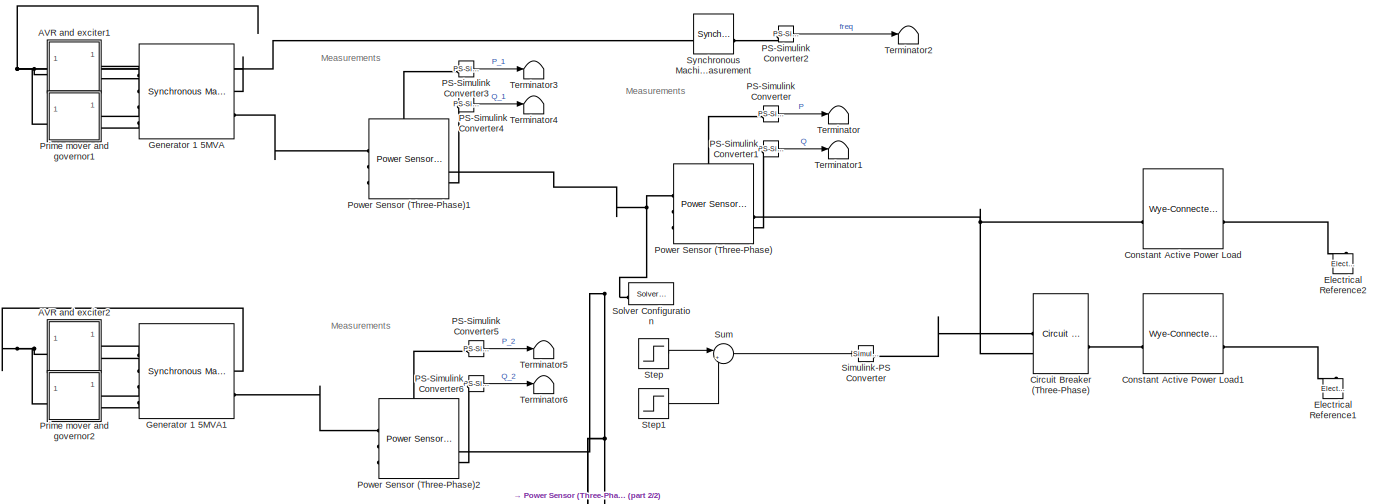
[diagram: root canvas - part 1/2, top right region]
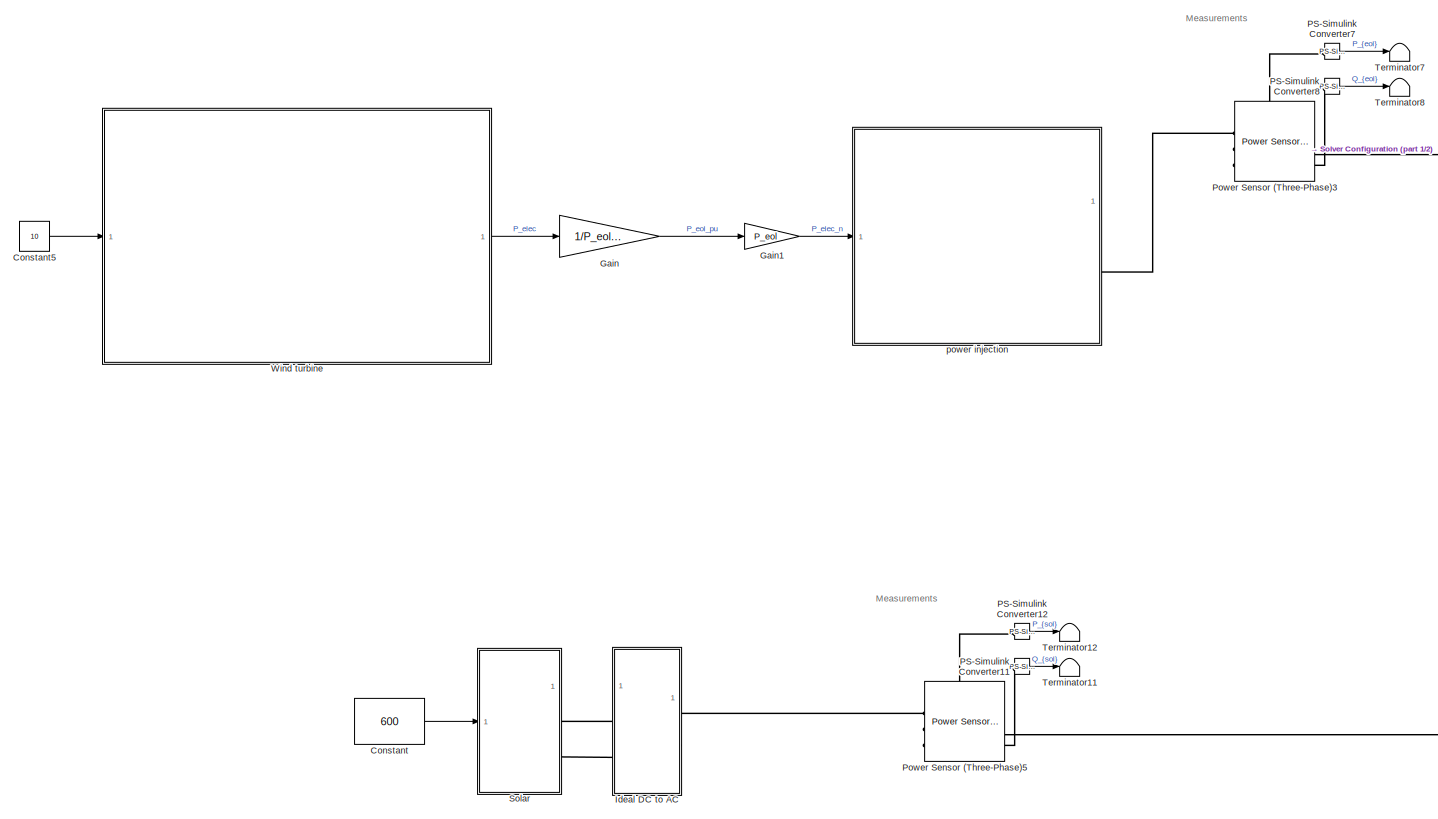
[diagram: root canvas - part 2/2, bottom left region]
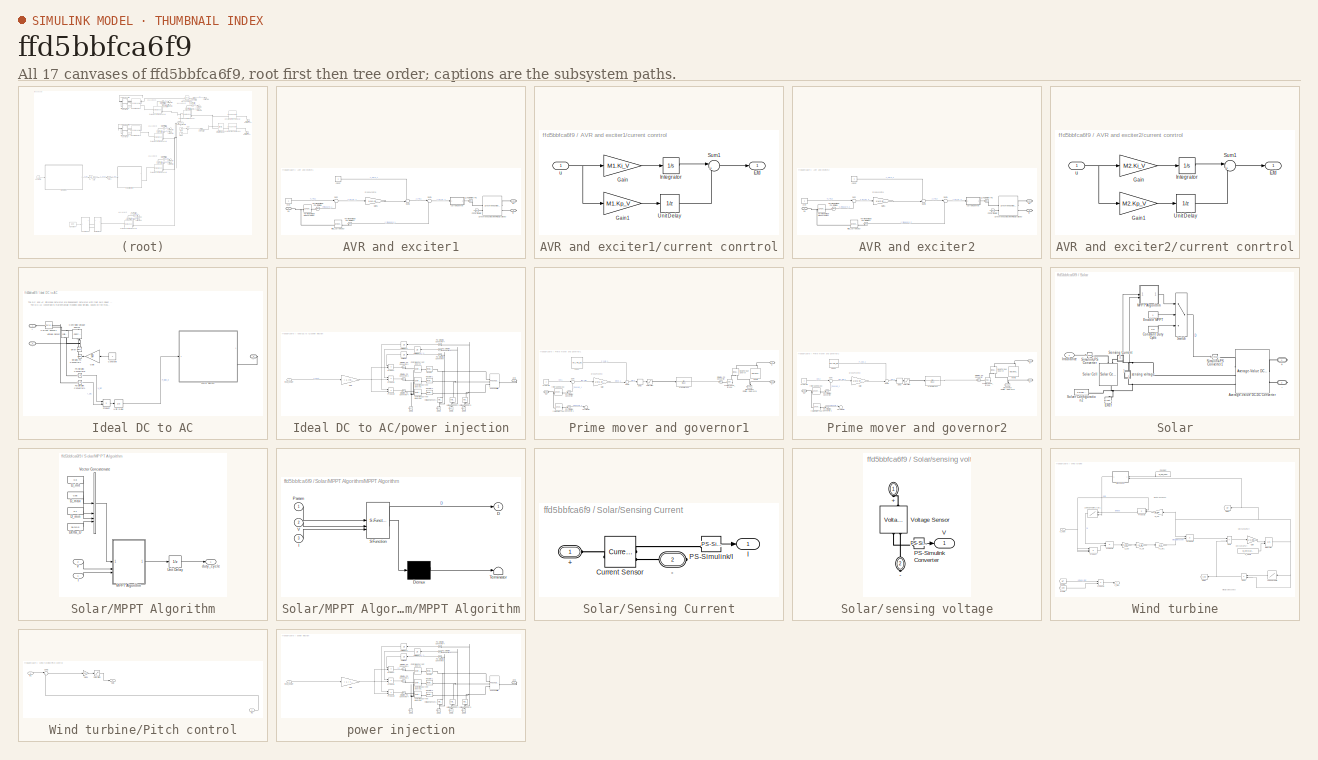
[diagram: thumbnail index - all 17 canvases of the model, root first then tree order]
MODEL slx_ffd5bbfca6f9
KIND model
CONFIG AbsTol = auto
CONFIG EnableMultiTasking = off
CONFIG FixedStep = auto
CONFIG MaxStep = auto
CONFIG MinStep = auto
CONFIG RelTol = 1e-3
CONFIG SampleTimeConstraint = Unconstrained
CONFIG SolverName = VariableStepAuto
CONFIG StartTime = 0.1
CONFIG StopTime = 40
BLOCK [SubSystem] AVR and exciter1
  NameLocation = top
BLOCK [Reference] AVR and exciter1/E_FD Simulink-PS   REF=nesl_utility/Simulink-PS
Converter
  SourceBlock = nesl_utility/Simulink-PS\nConverter
  SourceType = Simulink-PS\nConverter
BLOCK [Gain] AVR and exciter1/Gain1
  Gain = 1/M1.droopV1
BLOCK [Reference] AVR and exciter1/PS Terminator  REF=fl_lib/Physical Signals/Sinks/PS Terminator
  NameLocation = top
  SourceBlock = fl_lib/Physical Signals/Sinks/PS Terminator
  SourceType = PS Terminator
BLOCK [Sum] AVR and exciter1/Sum
  Inputs = |+-
BLOCK [Sum] AVR and exciter1/Sum1
  Inputs = |+-
BLOCK [Sum] AVR and exciter1/Sum2
  Inputs = ++|
BLOCK [Reference] AVR and exciter1/Synchronous Machine Field Circuit (pu)  REF=ee_lib/Electromechanical/Synchronous/Synchronous Machine
Field Circuit
  SourceBlock = ee_lib/Electromechanical/Synchronous/Synchronous Machine\nField Circuit
  SourceType = Synchronous Machine\nField Circuit
BLOCK [Reference] AVR and exciter1/Terminal Voltage Measurement  REF=ee_lib/Electromechanical/Synchronous/Synchronous Machine
Measurement
  SourceBlock = ee_lib/Electromechanical/Synchronous/Synchronous Machine\nMeasurement
  SourceType = Synchronous Machine\nMeasurement
BLOCK [Reference] AVR and exciter1/Terminal Voltage PS-Simulink  REF=nesl_utility/PS-Simulink
Converter
  SourceBlock = nesl_utility/PS-Simulink\nConverter
  SourceType = PS-Simulink\nConverter
BLOCK [Reference] AVR and exciter1/Terminal Voltage PS-Simulink1  REF=nesl_utility/PS-Simulink
Converter
  SourceBlock = nesl_utility/PS-Simulink\nConverter
  SourceType = PS-Simulink\nConverter
BLOCK [Constant] AVR and exciter1/Vref
  NameLocation = top
BLOCK [Constant] AVR and exciter1/const
  NameLocation = top
BLOCK [SubSystem] AVR and exciter1/current conrtrol
BLOCK [Outport] AVR and exciter1/current conrtrol/Efd
BLOCK [Gain] AVR and exciter1/current conrtrol/Gain
  Gain = M1.Ki_V
BLOCK [Gain] AVR and exciter1/current conrtrol/Gain1
  Gain = M1.Kp_V
BLOCK [Integrator] AVR and exciter1/current conrtrol/Integrator
BLOCK [Sum] AVR and exciter1/current conrtrol/Sum1
  Inputs = |++
BLOCK [UnitDelay] AVR and exciter1/current conrtrol/Unit Delay
  HasFrameUpgradeWarning = on
  InitialCondition = 1
  SampleTime = -1
BLOCK [Inport] AVR and exciter1/current conrtrol/u
BLOCK [PMIOPort] AVR and exciter1/fd+
  Port = 2
  Side = Right
BLOCK [PMIOPort] AVR and exciter1/fd-
  Port = 3
  Side = Right
BLOCK [Reference] AVR and exciter1/field_current (pu)  REF=ee_lib/Electromechanical/Synchronous/Synchronous Machine
Measurement
  SourceBlock = ee_lib/Electromechanical/Synchronous/Synchronous Machine\nMeasurement
  SourceType = Synchronous Machine\nMeasurement
BLOCK [PMIOPort] AVR and exciter1/pu
  Side = Left
BLOCK [SubSystem] AVR and exciter2
  NameLocation = top
BLOCK [Reference] AVR and exciter2/E_FD Simulink-PS   REF=nesl_utility/Simulink-PS
Converter
  SourceBlock = nesl_utility/Simulink-PS\nConverter
  SourceType = Simulink-PS\nConverter
BLOCK [Gain] AVR and exciter2/Gain1
  Gain = 1/M2.droopV1
BLOCK [Reference] AVR and exciter2/PS Terminator  REF=fl_lib/Physical Signals/Sinks/PS Terminator
  NameLocation = top
  SourceBlock = fl_lib/Physical Signals/Sinks/PS Terminator
  SourceType = PS Terminator
BLOCK [Sum] AVR and exciter2/Sum
  Inputs = |+-
BLOCK [Sum] AVR and exciter2/Sum1
  Inputs = |+-
BLOCK [Sum] AVR and exciter2/Sum2
  Inputs = ++|
BLOCK [Reference] AVR and exciter2/Synchronous Machine Field Circuit (pu)  REF=ee_lib/Electromechanical/Synchronous/Synchronous Machine
Field Circuit
  SourceBlock = ee_lib/Electromechanical/Synchronous/Synchronous Machine\nField Circuit
  SourceType = Synchronous Machine\nField Circuit
BLOCK [Reference] AVR and exciter2/Terminal Voltage Measurement  REF=ee_lib/Electromechanical/Synchronous/Synchronous Machine
Measurement
  SourceBlock = ee_lib/Electromechanical/Synchronous/Synchronous Machine\nMeasurement
  SourceType = Synchronous Machine\nMeasurement
BLOCK [Reference] AVR and exciter2/Terminal Voltage PS-Simulink  REF=nesl_utility/PS-Simulink
Converter
  SourceBlock = nesl_utility/PS-Simulink\nConverter
  SourceType = PS-Simulink\nConverter
BLOCK [Reference] AVR and exciter2/Terminal Voltage PS-Simulink1  REF=nesl_utility/PS-Simulink
Converter
  SourceBlock = nesl_utility/PS-Simulink\nConverter
  SourceType = PS-Simulink\nConverter
BLOCK [Constant] AVR and exciter2/Vref
  NameLocation = top
BLOCK [Constant] AVR and exciter2/const
  NameLocation = top
BLOCK [SubSystem] AVR and exciter2/current conrtrol
BLOCK [Outport] AVR and exciter2/current conrtrol/Efd
BLOCK [Gain] AVR and exciter2/current conrtrol/Gain
  Gain = M2.Ki_V
BLOCK [Gain] AVR and exciter2/current conrtrol/Gain1
  Gain = M2.Kp_V
BLOCK [Integrator] AVR and exciter2/current conrtrol/Integrator
BLOCK [Sum] AVR and exciter2/current conrtrol/Sum1
  Inputs = |++
BLOCK [UnitDelay] AVR and exciter2/current conrtrol/Unit Delay
  HasFrameUpgradeWarning = on
  InitialCondition = 1
  SampleTime = -1
BLOCK [Inport] AVR and exciter2/current conrtrol/u
BLOCK [PMIOPort] AVR and exciter2/fd+
  Port = 2
  Side = Right
BLOCK [PMIOPort] AVR and exciter2/fd-
  Port = 3
  Side = Right
BLOCK [Reference] AVR and exciter2/field_current (pu)  REF=ee_lib/Electromechanical/Synchronous/Synchronous Machine
Measurement
  SourceBlock = ee_lib/Electromechanical/Synchronous/Synchronous Machine\nMeasurement
  SourceType = Synchronous Machine\nMeasurement
BLOCK [PMIOPort] AVR and exciter2/pu
  Side = Left
BLOCK [Reference] Circuit Breaker (Three-Phase)  REF=ee_lib/Switches & Breakers/Circuit Breaker
(Three-Phase)
  SourceBlock = ee_lib/Switches & Breakers/Circuit Breaker\n(Three-Phase)
  SourceType = Circuit Breaker\n(Three-Phase)
BLOCK [Constant] Constant
  Value = 600
BLOCK [Reference] Constant Active Power Load  REF=ee_lib/Passive/RLC Assemblies/Wye-Connected Load
  SourceBlock = ee_lib/Passive/RLC Assemblies/Wye-Connected Load
  SourceType = Wye-Connected Load
BLOCK [Reference] Constant Active Power Load1  REF=ee_lib/Passive/RLC Assemblies/Wye-Connected Load
  SourceBlock = ee_lib/Passive/RLC Assemblies/Wye-Connected Load
  SourceType = Wye-Connected Load
BLOCK [Constant] Constant5
  Value = 10
BLOCK [Reference] Electrical Reference1  REF=fl_lib/Electrical/Electrical Elements/Electrical Reference
  NameLocation = right
  SourceBlock = fl_lib/Electrical/Electrical Elements/Electrical Reference
  SourceType = Electrical Reference
BLOCK [Reference] Electrical Reference2  REF=fl_lib/Electrical/Electrical Elements/Electrical Reference
  NameLocation = right
  SourceBlock = fl_lib/Electrical/Electrical Elements/Electrical Reference
  SourceType = Electrical Reference
BLOCK [Gain] Gain
  Gain = 1/P_eol_base
BLOCK [Gain] Gain1
  Gain = P_eol
BLOCK [Reference] Generator 1 5MVA  REF=ee_lib/Electromechanical/Synchronous/Synchronous Machine
Salient Pole
  SourceBlock = ee_lib/Electromechanical/Synchronous/Synchronous Machine\nSalient Pole
  SourceType = Synchronous Machine\nSalient Pole
BLOCK [Reference] Generator 1 5MVA1  REF=ee_lib/Electromechanical/Synchronous/Synchronous Machine
Salient Pole
  SourceBlock = ee_lib/Electromechanical/Synchronous/Synchronous Machine\nSalient Pole
  SourceType = Synchronous Machine\nSalient Pole
BLOCK [SubSystem] Ideal DC to AC
BLOCK [PMIOPort] Ideal DC to AC/+
  Side = Left
BLOCK [PMIOPort] Ideal DC to AC/-
  Port = 2
  Side = Left
BLOCK [Constant] Ideal DC to AC/Constant
  NameLocation = top
BLOCK [Reference] Ideal DC to AC/Controlled Voltage Source  REF=fl_lib/Electrical/Electrical Sources/Controlled Voltage
Source
  NameLocation = right
  SourceBlock = fl_lib/Electrical/Electrical Sources/Controlled Voltage\nSource
  SourceType = Controlled Voltage\nSource
BLOCK [Reference] Ideal DC to AC/Current Sensor1  REF=fl_lib/Electrical/Electrical Sensors/Current Sensor
  SourceBlock = fl_lib/Electrical/Electrical Sensors/Current Sensor
  SourceType = Current Sensor
BLOCK [Reference] Ideal DC to AC/ERef  REF=fl_lib/Electrical/Electrical Elements/Electrical Reference
  NameLocation = right
  SourceBlock = fl_lib/Electrical/Electrical Elements/Electrical Reference
  SourceType = Electrical Reference
BLOCK [Gain] Ideal DC to AC/Gain
  Gain = 50
BLOCK [Reference] Ideal DC to AC/PS-Simulink Converter1  REF=nesl_utility/PS-Simulink
Converter
  SourceBlock = nesl_utility/PS-Simulink\nConverter
  SourceType = PS-Simulink\nConverter
BLOCK [Reference] Ideal DC to AC/PS-Simulink Converter6  REF=nesl_utility/PS-Simulink
Converter
  SourceBlock = nesl_utility/PS-Simulink\nConverter
  SourceType = PS-Simulink\nConverter
BLOCK [Product] Ideal DC to AC/Product
BLOCK [Reference] Ideal DC to AC/Simulink-PS Converter1  REF=nesl_utility/Simulink-PS
Converter
  NameLocation = top
  SourceBlock = nesl_utility/Simulink-PS\nConverter
  SourceType = Simulink-PS\nConverter
BLOCK [UnitDelay] Ideal DC to AC/Unit Delay
  HasFrameUpgradeWarning = on
  SampleTime = -1
BLOCK [Reference] Ideal DC to AC/Voltage Sensor  REF=fl_lib/Electrical/Electrical Sensors/Voltage Sensor
  NameLocation = right
  SourceBlock = fl_lib/Electrical/Electrical Sensors/Voltage Sensor
  SourceType = Voltage Sensor
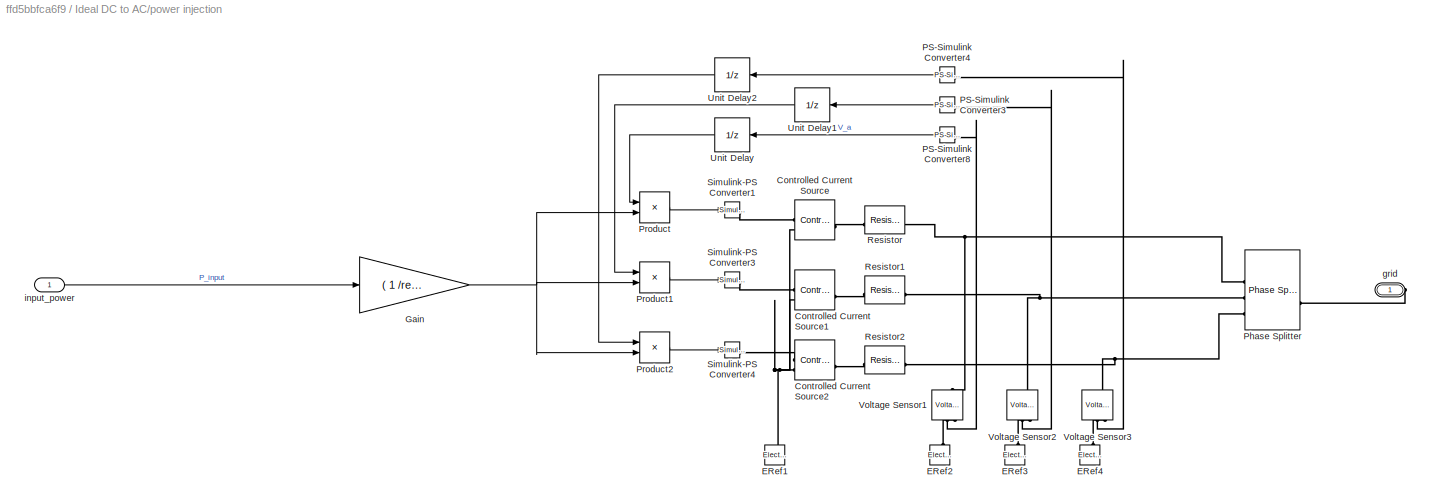
BLOCK [SubSystem] Ideal DC to AC/power injection
BLOCK [Reference] Ideal DC to AC/power injection/Controlled Current Source  REF=fl_lib/Electrical/Electrical Sources/Controlled Current
Source
  SourceBlock = fl_lib/Electrical/Electrical Sources/Controlled Current\nSource
  SourceType = Controlled Current\nSource
BLOCK [Reference] Ideal DC to AC/power injection/Controlled Current Source1  REF=fl_lib/Electrical/Electrical Sources/Controlled Current
Source
  SourceBlock = fl_lib/Electrical/Electrical Sources/Controlled Current\nSource
  SourceType = Controlled Current\nSource
BLOCK [Reference] Ideal DC to AC/power injection/Controlled Current Source2  REF=fl_lib/Electrical/Electrical Sources/Controlled Current
Source
  SourceBlock = fl_lib/Electrical/Electrical Sources/Controlled Current\nSource
  SourceType = Controlled Current\nSource
BLOCK [Reference] Ideal DC to AC/power injection/ERef1  REF=fl_lib/Electrical/Electrical Elements/Electrical Reference
  NameLocation = right
  SourceBlock = fl_lib/Electrical/Electrical Elements/Electrical Reference
  SourceType = Electrical Reference
BLOCK [Reference] Ideal DC to AC/power injection/ERef2  REF=fl_lib/Electrical/Electrical Elements/Electrical Reference
  NameLocation = right
  SourceBlock = fl_lib/Electrical/Electrical Elements/Electrical Reference
  SourceType = Electrical Reference
BLOCK [Reference] Ideal DC to AC/power injection/ERef3  REF=fl_lib/Electrical/Electrical Elements/Electrical Reference
  NameLocation = right
  SourceBlock = fl_lib/Electrical/Electrical Elements/Electrical Reference
  SourceType = Electrical Reference
BLOCK [Reference] Ideal DC to AC/power injection/ERef4  REF=fl_lib/Electrical/Electrical Elements/Electrical Reference
  NameLocation = right
  SourceBlock = fl_lib/Electrical/Electrical Elements/Electrical Reference
  SourceType = Electrical Reference
BLOCK [Gain] Ideal DC to AC/power injection/Gain
  Gain = ( 1 /ref_volt ) ^ 2
BLOCK [Reference] Ideal DC to AC/power injection/PS-Simulink Converter3  REF=nesl_utility/PS-Simulink
Converter
  NameLocation = top
  SourceBlock = nesl_utility/PS-Simulink\nConverter
  SourceType = PS-Simulink\nConverter
BLOCK [Reference] Ideal DC to AC/power injection/PS-Simulink Converter4  REF=nesl_utility/PS-Simulink
Converter
  NameLocation = top
  SourceBlock = nesl_utility/PS-Simulink\nConverter
  SourceType = PS-Simulink\nConverter
BLOCK [Reference] Ideal DC to AC/power injection/PS-Simulink Converter8  REF=nesl_utility/PS-Simulink
Converter
  NameLocation = top
  SourceBlock = nesl_utility/PS-Simulink\nConverter
  SourceType = PS-Simulink\nConverter
BLOCK [Reference] Ideal DC to AC/power injection/Phase Splitter  REF=ee_lib/Connectors &
References/Phase Splitter
  SourceBlock = ee_lib/Connectors &\nReferences/Phase Splitter
  SourceType = Phase Splitter
BLOCK [Product] Ideal DC to AC/power injection/Product
BLOCK [Product] Ideal DC to AC/power injection/Product1
BLOCK [Product] Ideal DC to AC/power injection/Product2
BLOCK [Reference] Ideal DC to AC/power injection/Resistor  REF=fl_lib/Electrical/Electrical Elements/Resistor
  SourceBlock = fl_lib/Electrical/Electrical Elements/Resistor
  SourceType = Resistor
BLOCK [Reference] Ideal DC to AC/power injection/Resistor1  REF=fl_lib/Electrical/Electrical Elements/Resistor
  SourceBlock = fl_lib/Electrical/Electrical Elements/Resistor
  SourceType = Resistor
BLOCK [Reference] Ideal DC to AC/power injection/Resistor2  REF=fl_lib/Electrical/Electrical Elements/Resistor
  SourceBlock = fl_lib/Electrical/Electrical Elements/Resistor
  SourceType = Resistor
BLOCK [Reference] Ideal DC to AC/power injection/Simulink-PS Converter1  REF=nesl_utility/Simulink-PS
Converter
  SourceBlock = nesl_utility/Simulink-PS\nConverter
  SourceType = Simulink-PS\nConverter
BLOCK [Reference] Ideal DC to AC/power injection/Simulink-PS Converter3  REF=nesl_utility/Simulink-PS
Converter
  SourceBlock = nesl_utility/Simulink-PS\nConverter
  SourceType = Simulink-PS\nConverter
BLOCK [Reference] Ideal DC to AC/power injection/Simulink-PS Converter4  REF=nesl_utility/Simulink-PS
Converter
  SourceBlock = nesl_utility/Simulink-PS\nConverter
  SourceType = Simulink-PS\nConverter
BLOCK [UnitDelay] Ideal DC to AC/power injection/Unit Delay
  HasFrameUpgradeWarning = on
  SampleTime = -1
BLOCK [UnitDelay] Ideal DC to AC/power injection/Unit Delay1
  HasFrameUpgradeWarning = on
  SampleTime = -1
BLOCK [UnitDelay] Ideal DC to AC/power injection/Unit Delay2
  HasFrameUpgradeWarning = on
  SampleTime = -1
BLOCK [Reference] Ideal DC to AC/power injection/Voltage Sensor1  REF=fl_lib/Electrical/Electrical Sensors/Voltage Sensor
  NameLocation = right
  SourceBlock = fl_lib/Electrical/Electrical Sensors/Voltage Sensor
  SourceType = Voltage Sensor
BLOCK [Reference] Ideal DC to AC/power injection/Voltage Sensor2  REF=fl_lib/Electrical/Electrical Sensors/Voltage Sensor
  NameLocation = right
  SourceBlock = fl_lib/Electrical/Electrical Sensors/Voltage Sensor
  SourceType = Voltage Sensor
BLOCK [Reference] Ideal DC to AC/power injection/Voltage Sensor3  REF=fl_lib/Electrical/Electrical Sensors/Voltage Sensor
  NameLocation = right
  SourceBlock = fl_lib/Electrical/Electrical Sensors/Voltage Sensor
  SourceType = Voltage Sensor
BLOCK [PMIOPort] Ideal DC to AC/power injection/grid
  Side = Right
BLOCK [Inport] Ideal DC to AC/power injection/input_power
BLOCK [PMIOPort] Ideal DC to AC/~
  Port = 3
  Side = Right
BLOCK [Reference] PS-Simulink Converter  REF=nesl_utility/PS-Simulink
Converter
  SourceBlock = nesl_utility/PS-Simulink\nConverter
  SourceType = PS-Simulink\nConverter
BLOCK [Reference] PS-Simulink Converter1  REF=nesl_utility/PS-Simulink
Converter
  SourceBlock = nesl_utility/PS-Simulink\nConverter
  SourceType = PS-Simulink\nConverter
BLOCK [Reference] PS-Simulink Converter11  REF=nesl_utility/PS-Simulink
Converter
  SourceBlock = nesl_utility/PS-Simulink\nConverter
  SourceType = PS-Simulink\nConverter
BLOCK [Reference] PS-Simulink Converter12  REF=nesl_utility/PS-Simulink
Converter
  SourceBlock = nesl_utility/PS-Simulink\nConverter
  SourceType = PS-Simulink\nConverter
BLOCK [Reference] PS-Simulink Converter2  REF=nesl_utility/PS-Simulink
Converter
  SourceBlock = nesl_utility/PS-Simulink\nConverter
  SourceType = PS-Simulink\nConverter
BLOCK [Reference] PS-Simulink Converter3  REF=nesl_utility/PS-Simulink
Converter
  SourceBlock = nesl_utility/PS-Simulink\nConverter
  SourceType = PS-Simulink\nConverter
BLOCK [Reference] PS-Simulink Converter4  REF=nesl_utility/PS-Simulink
Converter
  SourceBlock = nesl_utility/PS-Simulink\nConverter
  SourceType = PS-Simulink\nConverter
BLOCK [Reference] PS-Simulink Converter5  REF=nesl_utility/PS-Simulink
Converter
  SourceBlock = nesl_utility/PS-Simulink\nConverter
  SourceType = PS-Simulink\nConverter
BLOCK [Reference] PS-Simulink Converter6  REF=nesl_utility/PS-Simulink
Converter
  SourceBlock = nesl_utility/PS-Simulink\nConverter
  SourceType = PS-Simulink\nConverter
BLOCK [Reference] PS-Simulink Converter7  REF=nesl_utility/PS-Simulink
Converter
  SourceBlock = nesl_utility/PS-Simulink\nConverter
  SourceType = PS-Simulink\nConverter
BLOCK [Reference] PS-Simulink Converter8  REF=nesl_utility/PS-Simulink
Converter
  SourceBlock = nesl_utility/PS-Simulink\nConverter
  SourceType = PS-Simulink\nConverter
BLOCK [Reference] Power Sensor (Three-Phase)  REF=ee_lib/Sensors &
Transducers/Power Sensor
(Three-Phase)
  SourceBlock = ee_lib/Sensors &\nTransducers/Power Sensor\n(Three-Phase)
  SourceType = Power Sensor\n(Three-Phase)
BLOCK [Reference] Power Sensor (Three-Phase)1  REF=ee_lib/Sensors &
Transducers/Power Sensor
(Three-Phase)
  SourceBlock = ee_lib/Sensors &\nTransducers/Power Sensor\n(Three-Phase)
  SourceType = Power Sensor\n(Three-Phase)
BLOCK [Reference] Power Sensor (Three-Phase)2  REF=ee_lib/Sensors &
Transducers/Power Sensor
(Three-Phase)
  SourceBlock = ee_lib/Sensors &\nTransducers/Power Sensor\n(Three-Phase)
  SourceType = Power Sensor\n(Three-Phase)
BLOCK [Reference] Power Sensor (Three-Phase)3  REF=ee_lib/Sensors &
Transducers/Power Sensor
(Three-Phase)
  SourceBlock = ee_lib/Sensors &\nTransducers/Power Sensor\n(Three-Phase)
  SourceType = Power Sensor\n(Three-Phase)
BLOCK [Reference] Power Sensor (Three-Phase)5  REF=ee_lib/Sensors &
Transducers/Power Sensor
(Three-Phase)
  SourceBlock = ee_lib/Sensors &\nTransducers/Power Sensor\n(Three-Phase)
  SourceType = Power Sensor\n(Three-Phase)
BLOCK [SubSystem] Prime mover and governor1
BLOCK [PMIOPort] Prime mover and governor1/C
  Port = 2
  Side = Right
BLOCK [Delay] Prime mover and governor1/Delay
  DelayLength = 1
  InputPortMap = u0
BLOCK [Constant] Prime mover and governor1/Freq ref1
  NameLocation = top
BLOCK [Gain] Prime mover and governor1/Gain
  Gain = 1/M1.droopP1
BLOCK [Reference] Prime mover and governor1/Ideal Torque Source  REF=fl_lib/Mechanical/Mechanical Sources/Ideal Torque Source
  NameLocation = left
  SourceBlock = fl_lib/Mechanical/Mechanical Sources/Ideal Torque Source
  SourceType = Ideal Torque Source
BLOCK [Reference] Prime mover and governor1/Inertia  REF=ee_lib/Electromechanical/Mechanical/Machine
Inertia
  NameLocation = right
  SourceBlock = ee_lib/Electromechanical/Mechanical/Machine\nInertia
  SourceType = Machine\nInertia
BLOCK [Reference] Prime mover and governor1/Mechanical Rotational Reference  REF=fl_lib/Mechanical/Rotational Elements/Mechanical
Rotational Reference
  NameLocation = right
  SourceBlock = fl_lib/Mechanical/Rotational Elements/Mechanical\nRotational Reference
  SourceType = Mechanical\nRotational Reference
BLOCK [Reference] Prime mover and governor1/PS-Simulink Converter  REF=nesl_utility/PS-Simulink
Converter
  SourceBlock = nesl_utility/PS-Simulink\nConverter
  SourceType = PS-Simulink\nConverter
BLOCK [Reference] Prime mover and governor1/PS-Simulink Converter1  REF=nesl_utility/PS-Simulink
Converter
  SourceBlock = nesl_utility/PS-Simulink\nConverter
  SourceType = PS-Simulink\nConverter
BLOCK [PMIOPort] Prime mover and governor1/R
  Side = Right
BLOCK [Saturate] Prime mover and governor1/Saturation
  LowerLimit = 0
  UpperLimit = 1
BLOCK [Reference] Prime mover and governor1/Simulink-PS Converter  REF=nesl_utility/Simulink-PS
Converter
  NameLocation = top
  SourceBlock = nesl_utility/Simulink-PS\nConverter
  SourceType = Simulink-PS\nConverter
BLOCK [Sum] Prime mover and governor1/Sum
  Inputs = |+-
  NameLocation = top
BLOCK [Sum] Prime mover and governor1/Sum3
  Inputs = ++|
BLOCK [Terminator] Prime mover and governor1/Terminator
BLOCK [TransferFcn] Prime mover and governor1/Transfer Fcn
  Denominator = [0.5 1]
BLOCK [Constant] Prime mover and governor1/const
  NameLocation = top
  Value = M1.P0_pu
BLOCK [PMIOPort] Prime mover and governor1/pu
  Port = 3
  Side = Left
BLOCK [Reference] Prime mover and governor1/real power (pu)  REF=ee_lib/Electromechanical/Synchronous/Synchronous Machine
Measurement
  SourceBlock = ee_lib/Electromechanical/Synchronous/Synchronous Machine\nMeasurement
  SourceType = Synchronous Machine\nMeasurement
BLOCK [Reference] Prime mover and governor1/rotor speed (pu)  REF=ee_lib/Electromechanical/Synchronous/Synchronous Machine
Measurement
  SourceBlock = ee_lib/Electromechanical/Synchronous/Synchronous Machine\nMeasurement
  SourceType = Synchronous Machine\nMeasurement
BLOCK [Reference] Prime mover and governor1/scale by base_torque  REF=fl_lib/Physical Signals/Functions/PS Gain
  SourceBlock = fl_lib/Physical Signals/Functions/PS Gain
  SourceType = PS Gain
BLOCK [SubSystem] Prime mover and governor2
BLOCK [PMIOPort] Prime mover and governor2/C
  Port = 2
  Side = Right
BLOCK [Delay] Prime mover and governor2/Delay
  DelayLength = 1
  InputPortMap = u0
BLOCK [Constant] Prime mover and governor2/Freq ref1
  NameLocation = top
BLOCK [Gain] Prime mover and governor2/Gain
  Gain = 1/M2.droopP1
BLOCK [Reference] Prime mover and governor2/Ideal Torque Source  REF=fl_lib/Mechanical/Mechanical Sources/Ideal Torque Source
  NameLocation = left
  SourceBlock = fl_lib/Mechanical/Mechanical Sources/Ideal Torque Source
  SourceType = Ideal Torque Source
BLOCK [Reference] Prime mover and governor2/Inertia  REF=ee_lib/Electromechanical/Mechanical/Machine
Inertia
  NameLocation = right
  SourceBlock = ee_lib/Electromechanical/Mechanical/Machine\nInertia
  SourceType = Machine\nInertia
BLOCK [Reference] Prime mover and governor2/Mechanical Rotational Reference  REF=fl_lib/Mechanical/Rotational Elements/Mechanical
Rotational Reference
  NameLocation = right
  SourceBlock = fl_lib/Mechanical/Rotational Elements/Mechanical\nRotational Reference
  SourceType = Mechanical\nRotational Reference
BLOCK [Reference] Prime mover and governor2/PS-Simulink Converter  REF=nesl_utility/PS-Simulink
Converter
  SourceBlock = nesl_utility/PS-Simulink\nConverter
  SourceType = PS-Simulink\nConverter
BLOCK [Reference] Prime mover and governor2/PS-Simulink Converter1  REF=nesl_utility/PS-Simulink
Converter
  SourceBlock = nesl_utility/PS-Simulink\nConverter
  SourceType = PS-Simulink\nConverter
BLOCK [PMIOPort] Prime mover and governor2/R
  Side = Right
BLOCK [Saturate] Prime mover and governor2/Saturation
  LowerLimit = 0
  UpperLimit = 1
BLOCK [Reference] Prime mover and governor2/Simulink-PS Converter  REF=nesl_utility/Simulink-PS
Converter
  NameLocation = top
  SourceBlock = nesl_utility/Simulink-PS\nConverter
  SourceType = Simulink-PS\nConverter
BLOCK [Sum] Prime mover and governor2/Sum
  Inputs = |+-
  NameLocation = top
BLOCK [Sum] Prime mover and governor2/Sum3
  Inputs = ++|
BLOCK [Terminator] Prime mover and governor2/Terminator
BLOCK [TransferFcn] Prime mover and governor2/Transfer Fcn
  Denominator = [0.5 1]
BLOCK [Constant] Prime mover and governor2/const
  NameLocation = top
  Value = M2.P0_pu
BLOCK [PMIOPort] Prime mover and governor2/pu
  Port = 3
  Side = Left
BLOCK [Reference] Prime mover and governor2/real power (pu)  REF=ee_lib/Electromechanical/Synchronous/Synchronous Machine
Measurement
  SourceBlock = ee_lib/Electromechanical/Synchronous/Synchronous Machine\nMeasurement
  SourceType = Synchronous Machine\nMeasurement
BLOCK [Reference] Prime mover and governor2/rotor speed (pu)  REF=ee_lib/Electromechanical/Synchronous/Synchronous Machine
Measurement
  SourceBlock = ee_lib/Electromechanical/Synchronous/Synchronous Machine\nMeasurement
  SourceType = Synchronous Machine\nMeasurement
BLOCK [Reference] Prime mover and governor2/scale by base_torque  REF=fl_lib/Physical Signals/Functions/PS Gain
  SourceBlock = fl_lib/Physical Signals/Functions/PS Gain
  SourceType = PS Gain
BLOCK [Reference] Simulink-PS Converter  REF=nesl_utility/Simulink-PS
Converter
  SourceBlock = nesl_utility/Simulink-PS\nConverter
  SourceType = Simulink-PS\nConverter
BLOCK [SubSystem] Solar
BLOCK [PMIOPort] Solar/+
  Side = Right
BLOCK [PMIOPort] Solar/-
  Port = 2
  Side = Right
BLOCK [Reference] Solar/Average-Value DC-DC Converter  REF=ee_lib/Semiconductors &
Converters/Converters/Average-Value DC-DC
Converter
  SourceBlock = ee_lib/Semiconductors &\nConverters/Converters/Average-Value DC-DC\nConverter
  SourceType = Average-Value DC-DC\nConverter
BLOCK [Constant] Solar/Constant Duty Cycle
  Value = 0.8
BLOCK [Reference] Solar/ERef  REF=fl_lib/Electrical/Electrical Elements/Electrical Reference
  NameLocation = right
  SourceBlock = fl_lib/Electrical/Electrical Elements/Electrical Reference
  SourceType = Electrical Reference
BLOCK [Constant] Solar/Enable MPPT
BLOCK [Inport] Solar/Irradiance
BLOCK [SubSystem] Solar/MPPT Algorithm
BLOCK [Constant] Solar/MPPT Algorithm/D_init
  Value = 0.8
BLOCK [Constant] Solar/MPPT Algorithm/D_max
  Value = 0.85
BLOCK [Constant] Solar/MPPT Algorithm/D_min
  Value = 0.1
BLOCK [Constant] Solar/MPPT Algorithm/Delta_D
  Value = 3e-3*0.5
BLOCK [Inport] Solar/MPPT Algorithm/I
BLOCK [SubSystem] Solar/MPPT Algorithm/MPPT Algorithm
  ErrorFcn = Stateflow.Translate.translate
  PermitHierarchicalResolution = ExplicitOnly
  SFBlockType = MATLAB Function
  SystemSampleTime = Ts
  TreatAsGroupedWhenPropagatingVariantConditions = off
BLOCK [Demux] Solar/MPPT Algorithm/MPPT Algorithm/ Demux 
  Outputs = 1
BLOCK [S-Function] Solar/MPPT Algorithm/MPPT Algorithm/ SFunction 
  EnableBusSupport = on
  FunctionName = sf_sfun
  PortCounts = [3 2]
  SFcnIsStateOwnerBlock = off
  SFunctionDeploymentMode = off
  Tag = Stateflow S-Function 1
BLOCK [Terminator] Solar/MPPT Algorithm/MPPT Algorithm/ Terminator 
BLOCK [Outport] Solar/MPPT Algorithm/MPPT Algorithm/D
  VectorParamsAs1DForOutWhenUnconnected = off
BLOCK [Inport] Solar/MPPT Algorithm/MPPT Algorithm/I
  Port = 3
BLOCK [Inport] Solar/MPPT Algorithm/MPPT Algorithm/Param
BLOCK [Inport] Solar/MPPT Algorithm/MPPT Algorithm/V
  Port = 2
BLOCK [UnitDelay] Solar/MPPT Algorithm/Unit Delay
  HasFrameUpgradeWarning = on
  InitialCondition = 0.85
  SampleTime = -1
BLOCK [Inport] Solar/MPPT Algorithm/V
  Port = 2
BLOCK [Concatenate] Solar/MPPT Algorithm/Vector Concatenate
  NumInputs = 4
BLOCK [Outport] Solar/MPPT Algorithm/duty_cycle
BLOCK [SubSystem] Solar/Sensing Current
  PortSchema = {"entries":[{"content":{"sides":[{"content":{"connectorIds":["LConn1"]},"type":"ConnectorPlacement.EquallySpacedRectSide","uuid":"08eaf192-3836-4d70-9f6a-c3aee0977ea6"},{"content":{"connectorIds":["RConn1"],"side":"RIGHT"},"type":"ConnectorPlacement.EquallySpacedRectSide","uuid":"69615d36-c1bf-4d31-b3e4-77c73286e7c7"},{"content":{"connectorIds":["Out1"],"side":"TOP"},"type":"ConnectorPlacement.Equ...<+251ch>
BLOCK [PMIOPort] Solar/Sensing Current/+
  Side = Left
BLOCK [PMIOPort] Solar/Sensing Current/-
  Port = 2
  Side = Right
BLOCK [Reference] Solar/Sensing Current/Current Sensor  REF=fl_lib/Electrical/Electrical Sensors/Current Sensor
  SourceBlock = fl_lib/Electrical/Electrical Sensors/Current Sensor
  SourceType = Current Sensor
BLOCK [Outport] Solar/Sensing Current/I
BLOCK [Reference] Solar/Sensing Current/PS-Simulink//I  REF=nesl_utility/PS-Simulink
Converter
  SourceBlock = nesl_utility/PS-Simulink\nConverter
  SourceType = PS-Simulink\nConverter
BLOCK [Reference] Solar/Simulink-PS Converter  REF=nesl_utility/Simulink-PS
Converter
  SourceBlock = nesl_utility/Simulink-PS\nConverter
  SourceType = Simulink-PS\nConverter
BLOCK [Reference] Solar/Simulink-PS Converter1  REF=nesl_utility/Simulink-PS
Converter
  SourceBlock = nesl_utility/Simulink-PS\nConverter
  SourceType = Simulink-PS\nConverter
BLOCK [Reference] Solar/Solar Cell  REF=ee_lib/Sources/Solar Cell
  NameLocation = left
  SourceBlock = ee_lib/Sources/Solar Cell
  SourceType = Solar Cell
BLOCK [Reference] Solar/Solver Configuration2  REF=nesl_utility/Solver
Configuration
  SourceBlock = nesl_utility/Solver\nConfiguration
  SourceType = Solver\nConfiguration
BLOCK [Switch] Solar/Switch
  Criteria = u2 > Threshold
  InputSameDT = off
  SaturateOnIntegerOverflow = off
BLOCK [SubSystem] Solar/sensing voltage
  NameLocation = left
  PortSchema = {"entries":[{"content":{"sides":[{"content":{"connectorIds":["LConn1"]},"type":"ConnectorPlacement.EquallySpacedRectSide","uuid":"08eaf192-3836-4d70-9f6a-c3aee0977ea6"},{"content":{"connectorIds":["RConn1"],"side":"RIGHT"},"type":"ConnectorPlacement.EquallySpacedRectSide","uuid":"69615d36-c1bf-4d31-b3e4-77c73286e7c7"},{"content":{"connectorIds":[],"side":"TOP"},"type":"ConnectorPlacement.EquallySp...<+395ch>
BLOCK [PMIOPort] Solar/sensing voltage/+
  NameLocation = left
  Side = Left
BLOCK [PMIOPort] Solar/sensing voltage/-
  NameLocation = left
  Port = 2
  Side = Right
BLOCK [Reference] Solar/sensing voltage/PS-Simulink Converter  REF=nesl_utility/PS-Simulink
Converter
  SourceBlock = nesl_utility/PS-Simulink\nConverter
  SourceType = PS-Simulink\nConverter
BLOCK [Outport] Solar/sensing voltage/V
BLOCK [Reference] Solar/sensing voltage/Voltage Sensor  REF=fl_lib/Electrical/Electrical Sensors/Voltage Sensor
  NameLocation = right
  SourceBlock = fl_lib/Electrical/Electrical Sensors/Voltage Sensor
  SourceType = Voltage Sensor
BLOCK [Reference] Solver Configuration  REF=nesl_utility/Solver
Configuration
  SourceBlock = nesl_utility/Solver\nConfiguration
  SourceType = Solver\nConfiguration
BLOCK [Step] Step
  After = 0
  Before = 1
  SampleTime = 0
  Time = close_time
BLOCK [Step] Step1
  SampleTime = 0
  Time = open_time
BLOCK [Sum] Sum
  Inputs = |++
BLOCK [Reference] Synchronous Machine Measurement  REF=ee_lib/Electromechanical/Synchronous/Synchronous Machine
Measurement
  SourceBlock = ee_lib/Electromechanical/Synchronous/Synchronous Machine\nMeasurement
  SourceType = Synchronous Machine\nMeasurement
BLOCK [Terminator] Terminator
BLOCK [Terminator] Terminator1
BLOCK [Terminator] Terminator11
BLOCK [Terminator] Terminator12
BLOCK [Terminator] Terminator2
BLOCK [Terminator] Terminator3
BLOCK [Terminator] Terminator4
BLOCK [Terminator] Terminator5
BLOCK [Terminator] Terminator6
BLOCK [Terminator] Terminator7
BLOCK [Terminator] Terminator8
BLOCK [SubSystem] Wind turbine
BLOCK [Constant] Wind turbine/Constant
  Value = w_eol_nom
BLOCK [Product] Wind turbine/Divide
  InputSameDT = on
  Inputs = */
  OutDataTypeStr = Inherit: Same as first input
  RndMeth = Zero
BLOCK [From] Wind turbine/From1
  CloseFcn = tagdialog Close
  GotoTag = wT
BLOCK [From] Wind turbine/From2
  CloseFcn = tagdialog Close
  GotoTag = T_em
BLOCK [Gain] Wind turbine/Gain
  Gain = 1/J_eol
  OutDataTypeStr = Inherit: Same as input
  ParamDataTypeStr = Inherit: Same as input
  SaturateOnIntegerOverflow = on
BLOCK [Goto] Wind turbine/Goto1
  GotoTag = wT
BLOCK [Goto] Wind turbine/Goto2
  GotoTag = T_em
BLOCK [Integrator] Wind turbine/Integrator
  InitialConditionSource = external
BLOCK [Lookup] Wind turbine/Lookup Table
  InputValues = omega_tab
  Table = P_opt_tab2
BLOCK [Lookup2D] Wind turbine/Lookup Table (2-D)1
  ColumnIndex = beta_ref
  RowIndex = lambda_ref
  Table = Cp_ref
BLOCK [Outport] Wind turbine/P_elec
BLOCK [SubSystem] Wind turbine/Pitch control
BLOCK [Gain] Wind turbine/Pitch control/Gain1
  Gain = -200
BLOCK [Inport] Wind turbine/Pitch control/In1
BLOCK [Inport] Wind turbine/Pitch control/In2
  Port = 2
BLOCK [Outport] Wind turbine/Pitch control/Out1
BLOCK [Saturate] Wind turbine/Pitch control/Saturation
  LowerLimit = 0
  UpperLimit = inf
BLOCK [Sum] Wind turbine/Pitch control/Sum1
  Inputs = |+-
BLOCK [Product] Wind turbine/Product
  InputSameDT = on
  Inputs = 3
  OutDataTypeStr = Inherit: Same as first input
  RndMeth = Zero
  SaturateOnIntegerOverflow = on
BLOCK [Product] Wind turbine/Product1
  InputSameDT = on
  Inputs = /*
  OutDataTypeStr = Inherit: Same as first input
  RndMeth = Zero
  SaturateOnIntegerOverflow = on
BLOCK [Product] Wind turbine/Product2
  InputSameDT = on
  OutDataTypeStr = Inherit: Same as first input
  RndMeth = Zero
  SaturateOnIntegerOverflow = on
BLOCK [Product] Wind turbine/Product3
  InputSameDT = on
  Inputs = /*
  OutDataTypeStr = Inherit: Same as first input
  RndMeth = Zero
  SaturateOnIntegerOverflow = on
BLOCK [Product] Wind turbine/Product4
BLOCK [Gain] Wind turbine/R_pal
  Gain = R_pal
  OutDataTypeStr = Inherit: Same as input
  ParamDataTypeStr = Inherit: Same as input
  SaturateOnIntegerOverflow = on
BLOCK [Gain] Wind turbine/S_pal
  Gain = S_pal
  OutDataTypeStr = Inherit: Same as input
  ParamDataTypeStr = Inherit: Same as input
  SaturateOnIntegerOverflow = on
BLOCK [Sum] Wind turbine/Sum
  IconShape = rectangular
  InputSameDT = on
  Inputs = +-
  OutDataTypeStr = Inherit: Same as first input
  SaturateOnIntegerOverflow = on
BLOCK [Gain] Wind turbine/ro_air
  Gain = ro_air
  OutDataTypeStr = Inherit: Same as input
  ParamDataTypeStr = Inherit: Same as input
  SaturateOnIntegerOverflow = on
BLOCK [Gain] Wind turbine/ro_air1
  Gain = 1/2
  OutDataTypeStr = Inherit: Same as input
  ParamDataTypeStr = Inherit: Same as input
  SaturateOnIntegerOverflow = on
BLOCK [Inport] Wind turbine/v_vent
BLOCK [Constant] Wind turbine/v_vent2
  Value = w_zero + 1e-6
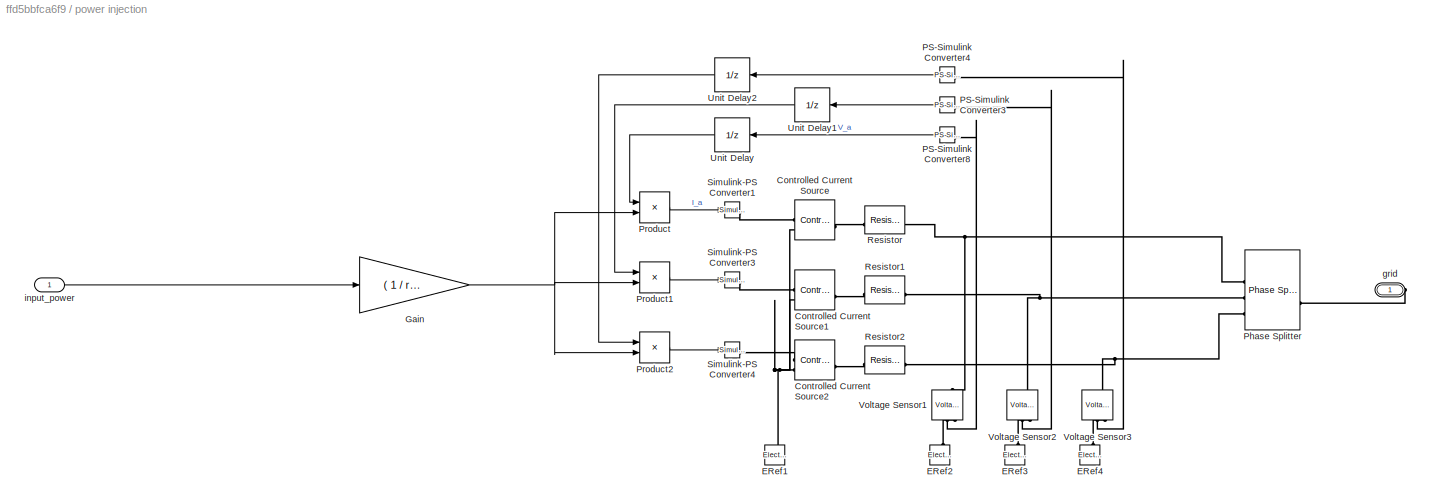
BLOCK [SubSystem] power injection
BLOCK [Reference] power injection/Controlled Current Source  REF=fl_lib/Electrical/Electrical Sources/Controlled Current
Source
  SourceBlock = fl_lib/Electrical/Electrical Sources/Controlled Current\nSource
  SourceType = Controlled Current\nSource
BLOCK [Reference] power injection/Controlled Current Source1  REF=fl_lib/Electrical/Electrical Sources/Controlled Current
Source
  SourceBlock = fl_lib/Electrical/Electrical Sources/Controlled Current\nSource
  SourceType = Controlled Current\nSource
BLOCK [Reference] power injection/Controlled Current Source2  REF=fl_lib/Electrical/Electrical Sources/Controlled Current
Source
  SourceBlock = fl_lib/Electrical/Electrical Sources/Controlled Current\nSource
  SourceType = Controlled Current\nSource
BLOCK [Reference] power injection/ERef1  REF=fl_lib/Electrical/Electrical Elements/Electrical Reference
  NameLocation = right
  SourceBlock = fl_lib/Electrical/Electrical Elements/Electrical Reference
  SourceType = Electrical Reference
BLOCK [Reference] power injection/ERef2  REF=fl_lib/Electrical/Electrical Elements/Electrical Reference
  NameLocation = right
  SourceBlock = fl_lib/Electrical/Electrical Elements/Electrical Reference
  SourceType = Electrical Reference
BLOCK [Reference] power injection/ERef3  REF=fl_lib/Electrical/Electrical Elements/Electrical Reference
  NameLocation = right
  SourceBlock = fl_lib/Electrical/Electrical Elements/Electrical Reference
  SourceType = Electrical Reference
BLOCK [Reference] power injection/ERef4  REF=fl_lib/Electrical/Electrical Elements/Electrical Reference
  NameLocation = right
  SourceBlock = fl_lib/Electrical/Electrical Elements/Electrical Reference
  SourceType = Electrical Reference
BLOCK [Gain] power injection/Gain
  Gain = ( 1 / ref_volt ) ^ 2
BLOCK [Reference] power injection/PS-Simulink Converter3  REF=nesl_utility/PS-Simulink
Converter
  NameLocation = top
  SourceBlock = nesl_utility/PS-Simulink\nConverter
  SourceType = PS-Simulink\nConverter
BLOCK [Reference] power injection/PS-Simulink Converter4  REF=nesl_utility/PS-Simulink
Converter
  NameLocation = top
  SourceBlock = nesl_utility/PS-Simulink\nConverter
  SourceType = PS-Simulink\nConverter
BLOCK [Reference] power injection/PS-Simulink Converter8  REF=nesl_utility/PS-Simulink
Converter
  NameLocation = top
  SourceBlock = nesl_utility/PS-Simulink\nConverter
  SourceType = PS-Simulink\nConverter
BLOCK [Reference] power injection/Phase Splitter  REF=ee_lib/Connectors &
References/Phase Splitter
  SourceBlock = ee_lib/Connectors &\nReferences/Phase Splitter
  SourceType = Phase Splitter
BLOCK [Product] power injection/Product
BLOCK [Product] power injection/Product1
BLOCK [Product] power injection/Product2
BLOCK [Reference] power injection/Resistor  REF=fl_lib/Electrical/Electrical Elements/Resistor
  SourceBlock = fl_lib/Electrical/Electrical Elements/Resistor
  SourceType = Resistor
BLOCK [Reference] power injection/Resistor1  REF=fl_lib/Electrical/Electrical Elements/Resistor
  SourceBlock = fl_lib/Electrical/Electrical Elements/Resistor
  SourceType = Resistor
BLOCK [Reference] power injection/Resistor2  REF=fl_lib/Electrical/Electrical Elements/Resistor
  SourceBlock = fl_lib/Electrical/Electrical Elements/Resistor
  SourceType = Resistor
BLOCK [Reference] power injection/Simulink-PS Converter1  REF=nesl_utility/Simulink-PS
Converter
  SourceBlock = nesl_utility/Simulink-PS\nConverter
  SourceType = Simulink-PS\nConverter
BLOCK [Reference] power injection/Simulink-PS Converter3  REF=nesl_utility/Simulink-PS
Converter
  SourceBlock = nesl_utility/Simulink-PS\nConverter
  SourceType = Simulink-PS\nConverter
BLOCK [Reference] power injection/Simulink-PS Converter4  REF=nesl_utility/Simulink-PS
Converter
  SourceBlock = nesl_utility/Simulink-PS\nConverter
  SourceType = Simulink-PS\nConverter
BLOCK [UnitDelay] power injection/Unit Delay
  HasFrameUpgradeWarning = on
  SampleTime = -1
BLOCK [UnitDelay] power injection/Unit Delay1
  HasFrameUpgradeWarning = on
  SampleTime = -1
BLOCK [UnitDelay] power injection/Unit Delay2
  HasFrameUpgradeWarning = on
  SampleTime = -1
BLOCK [Reference] power injection/Voltage Sensor1  REF=fl_lib/Electrical/Electrical Sensors/Voltage Sensor
  NameLocation = right
  SourceBlock = fl_lib/Electrical/Electrical Sensors/Voltage Sensor
  SourceType = Voltage Sensor
BLOCK [Reference] power injection/Voltage Sensor2  REF=fl_lib/Electrical/Electrical Sensors/Voltage Sensor
  NameLocation = right
  SourceBlock = fl_lib/Electrical/Electrical Sensors/Voltage Sensor
  SourceType = Voltage Sensor
BLOCK [Reference] power injection/Voltage Sensor3  REF=fl_lib/Electrical/Electrical Sensors/Voltage Sensor
  NameLocation = right
  SourceBlock = fl_lib/Electrical/Electrical Sensors/Voltage Sensor
  SourceType = Voltage Sensor
BLOCK [PMIOPort] power injection/grid
  Side = Right
BLOCK [Inport] power injection/input_power
ANNOTATION (root): Measurements
ANNOTATION AVR and exciter1: Droop V control
ANNOTATION AVR and exciter2: Droop V control
ANNOTATION Ideal DC to AC: The DC and AC Simscape networks are independent networks with their own Solver Configuration blocks. The DC/AC conversion is mathematically modeled using Simulink, based on the measured Simscape values.
ANNOTATION Prime mover and governor1: Droop P control
ANNOTATION Prime mover and governor2: Droop P control
ANNOTATION Wind turbine: Mechanical Part
ANNOTATION Wind turbine: Wind turbine control
ANNOTATION Wind turbine: Wind turbine model
LINE AVR and exciter1/Gain1:1 -> AVR and exciter1/Sum2:2
LINE AVR and exciter1/Sum1:1 -> AVR and exciter1/current conrtrol:1
LINE AVR and exciter1/Sum2:1 -> AVR and exciter1/Sum1:1
LINE AVR and exciter1/Sum:1 -> AVR and exciter1/Gain1:1
LINE AVR and exciter1/Terminal Voltage PS-Simulink1:1 -> AVR and exciter1/Sum1:2
LINE AVR and exciter1/Terminal Voltage PS-Simulink:1 -> AVR and exciter1/Sum:2
LINE AVR and exciter1/Vref:1 -> AVR and exciter1/Sum:1
LINE AVR and exciter1/const:1 -> AVR and exciter1/Sum2:1
LINE AVR and exciter1/current conrtrol/Gain1:1 -> AVR and exciter1/current conrtrol/Unit Delay:1
LINE AVR and exciter1/current conrtrol/Gain:1 -> AVR and exciter1/current conrtrol/Integrator:1
LINE AVR and exciter1/current conrtrol/Integrator:1 -> AVR and exciter1/current conrtrol/Sum1:1
LINE AVR and exciter1/current conrtrol/Sum1:1 -> AVR and exciter1/current conrtrol/Efd:1
LINE AVR and exciter1/current conrtrol/Unit Delay:1 -> AVR and exciter1/current conrtrol/Sum1:2
NET AVR and exciter1/current conrtrol/u:1 -> AVR and exciter1/current conrtrol/Gain1:1, AVR and exciter1/current conrtrol/Gain:1
LINE AVR and exciter1/current conrtrol:1 -> AVR and exciter1/E_FD Simulink-PS :1
LINE AVR and exciter2/Gain1:1 -> AVR and exciter2/Sum2:2
LINE AVR and exciter2/Sum1:1 -> AVR and exciter2/current conrtrol:1
LINE AVR and exciter2/Sum2:1 -> AVR and exciter2/Sum1:1
LINE AVR and exciter2/Sum:1 -> AVR and exciter2/Gain1:1
LINE AVR and exciter2/Terminal Voltage PS-Simulink1:1 -> AVR and exciter2/Sum1:2
LINE AVR and exciter2/Terminal Voltage PS-Simulink:1 -> AVR and exciter2/Sum:2
LINE AVR and exciter2/Vref:1 -> AVR and exciter2/Sum:1
LINE AVR and exciter2/const:1 -> AVR and exciter2/Sum2:1
LINE AVR and exciter2/current conrtrol/Gain1:1 -> AVR and exciter2/current conrtrol/Unit Delay:1
LINE AVR and exciter2/current conrtrol/Gain:1 -> AVR and exciter2/current conrtrol/Integrator:1
LINE AVR and exciter2/current conrtrol/Integrator:1 -> AVR and exciter2/current conrtrol/Sum1:1
LINE AVR and exciter2/current conrtrol/Sum1:1 -> AVR and exciter2/current conrtrol/Efd:1
LINE AVR and exciter2/current conrtrol/Unit Delay:1 -> AVR and exciter2/current conrtrol/Sum1:2
NET AVR and exciter2/current conrtrol/u:1 -> AVR and exciter2/current conrtrol/Gain1:1, AVR and exciter2/current conrtrol/Gain:1
LINE AVR and exciter2/current conrtrol:1 -> AVR and exciter2/E_FD Simulink-PS :1
LINE Constant5:1 -> Wind turbine:1
LINE Constant:1 -> Solar:1
LINE Gain1:1 -> power injection:1
LINE Gain:1 -> Gain1:1
LINE Ideal DC to AC/Constant:1 -> Ideal DC to AC/Gain:1
LINE Ideal DC to AC/Gain:1 -> Ideal DC to AC/Simulink-PS Converter1:1
LINE Ideal DC to AC/PS-Simulink Converter1:1 -> Ideal DC to AC/Product:2
LINE Ideal DC to AC/PS-Simulink Converter6:1 -> Ideal DC to AC/Product:1
LINE Ideal DC to AC/Product:1 -> Ideal DC to AC/Unit Delay:1
LINE Ideal DC to AC/Unit Delay:1 -> Ideal DC to AC/power injection:1
NET Ideal DC to AC/power injection/Gain:1 -> Ideal DC to AC/power injection/Product1:2, Ideal DC to AC/power injection/Product2:2, Ideal DC to AC/power injection/Product:2
LINE Ideal DC to AC/power injection/PS-Simulink Converter3:1 -> Ideal DC to AC/power injection/Unit Delay1:1
LINE Ideal DC to AC/power injection/PS-Simulink Converter4:1 -> Ideal DC to AC/power injection/Unit Delay2:1
LINE Ideal DC to AC/power injection/PS-Simulink Converter8:1 -> Ideal DC to AC/power injection/Unit Delay:1
LINE Ideal DC to AC/power injection/Product1:1 -> Ideal DC to AC/power injection/Simulink-PS Converter3:1
LINE Ideal DC to AC/power injection/Product2:1 -> Ideal DC to AC/power injection/Simulink-PS Converter4:1
LINE Ideal DC to AC/power injection/Product:1 -> Ideal DC to AC/power injection/Simulink-PS Converter1:1
LINE Ideal DC to AC/power injection/Unit Delay1:1 -> Ideal DC to AC/power injection/Product1:1
LINE Ideal DC to AC/power injection/Unit Delay2:1 -> Ideal DC to AC/power injection/Product2:1
LINE Ideal DC to AC/power injection/Unit Delay:1 -> Ideal DC to AC/power injection/Product:1
LINE Ideal DC to AC/power injection/input_power:1 -> Ideal DC to AC/power injection/Gain:1
LINE PS-Simulink Converter11:1 -> Terminator11:1
LINE PS-Simulink Converter12:1 -> Terminator12:1
LINE PS-Simulink Converter1:1 -> Terminator1:1
LINE PS-Simulink Converter2:1 -> Terminator2:1
LINE PS-Simulink Converter3:1 -> Terminator3:1
LINE PS-Simulink Converter4:1 -> Terminator4:1
LINE PS-Simulink Converter5:1 -> Terminator5:1
LINE PS-Simulink Converter6:1 -> Terminator6:1
LINE PS-Simulink Converter7:1 -> Terminator7:1
LINE PS-Simulink Converter8:1 -> Terminator8:1
LINE PS-Simulink Converter:1 -> Terminator:1
LINE Prime mover and governor1/Delay:1 -> Prime mover and governor1/Saturation:1
LINE Prime mover and governor1/Freq ref1:1 -> Prime mover and governor1/Sum:1
LINE Prime mover and governor1/Gain:1 -> Prime mover and governor1/Sum3:2
LINE Prime mover and governor1/PS-Simulink Converter1:1 -> Prime mover and governor1/Terminator:1
LINE Prime mover and governor1/PS-Simulink Converter:1 -> Prime mover and governor1/Sum:2
LINE Prime mover and governor1/Saturation:1 -> Prime mover and governor1/Transfer Fcn:1
LINE Prime mover and governor1/Sum3:1 -> Prime mover and governor1/Delay:1
LINE Prime mover and governor1/Sum:1 -> Prime mover and governor1/Gain:1
LINE Prime mover and governor1/Transfer Fcn:1 -> Prime mover and governor1/Simulink-PS Converter:1
LINE Prime mover and governor1/const:1 -> Prime mover and governor1/Sum3:1
LINE Prime mover and governor2/Delay:1 -> Prime mover and governor2/Saturation:1
LINE Prime mover and governor2/Freq ref1:1 -> Prime mover and governor2/Sum:1
LINE Prime mover and governor2/Gain:1 -> Prime mover and governor2/Sum3:2
LINE Prime mover and governor2/PS-Simulink Converter1:1 -> Prime mover and governor2/Terminator:1
LINE Prime mover and governor2/PS-Simulink Converter:1 -> Prime mover and governor2/Sum:2
LINE Prime mover and governor2/Saturation:1 -> Prime mover and governor2/Transfer Fcn:1
LINE Prime mover and governor2/Sum3:1 -> Prime mover and governor2/Delay:1
LINE Prime mover and governor2/Sum:1 -> Prime mover and governor2/Gain:1
LINE Prime mover and governor2/Transfer Fcn:1 -> Prime mover and governor2/Simulink-PS Converter:1
LINE Prime mover and governor2/const:1 -> Prime mover and governor2/Sum3:1
LINE Solar/Constant Duty Cycle:1 -> Solar/Switch:3
LINE Solar/Enable MPPT:1 -> Solar/Switch:2
LINE Solar/Irradiance:1 -> Solar/Simulink-PS Converter:1
LINE Solar/MPPT Algorithm/D_init:1 -> Solar/MPPT Algorithm/Vector Concatenate:1
LINE Solar/MPPT Algorithm/D_max:1 -> Solar/MPPT Algorithm/Vector Concatenate:2
LINE Solar/MPPT Algorithm/D_min:1 -> Solar/MPPT Algorithm/Vector Concatenate:3
LINE Solar/MPPT Algorithm/Delta_D:1 -> Solar/MPPT Algorithm/Vector Concatenate:4
LINE Solar/MPPT Algorithm/I:1 -> Solar/MPPT Algorithm/MPPT Algorithm:3
LINE Solar/MPPT Algorithm/MPPT Algorithm:1 -> Solar/MPPT Algorithm/Unit Delay:1
LINE Solar/MPPT Algorithm/Unit Delay:1 -> Solar/MPPT Algorithm/duty_cycle:1
LINE Solar/MPPT Algorithm/V:1 -> Solar/MPPT Algorithm/MPPT Algorithm:2
LINE Solar/MPPT Algorithm/Vector Concatenate:1 -> Solar/MPPT Algorithm/MPPT Algorithm:1
LINE Solar/MPPT Algorithm:1 -> Solar/Switch:1
LINE Solar/Sensing Current/PS-Simulink//I:1 -> Solar/Sensing Current/I:1
LINE Solar/Sensing Current:1 -> Solar/MPPT Algorithm:1
LINE Solar/Switch:1 -> Solar/Simulink-PS Converter1:1
LINE Solar/sensing voltage/PS-Simulink Converter:1 -> Solar/sensing voltage/V:1
LINE Solar/sensing voltage:1 -> Solar/MPPT Algorithm:2
LINE Step1:1 -> Sum:2
LINE Step:1 -> Sum:1
LINE Sum:1 -> Simulink-PS Converter:1
LINE Wind turbine/Constant:1 -> Wind turbine/Pitch control:1
NET Wind turbine/Divide:1 -> Wind turbine/Goto2:1, Wind turbine/Sum:2
LINE Wind turbine/From1:1 -> Wind turbine/Product4:1
LINE Wind turbine/From2:1 -> Wind turbine/Product4:2
LINE Wind turbine/Gain:1 -> Wind turbine/Integrator:1
NET Wind turbine/Integrator:1 -> Wind turbine/Divide:2, Wind turbine/Goto1:1, Wind turbine/Lookup Table:1, Wind turbine/Pitch control:2, Wind turbine/Product1:1, Wind turbine/R_pal:1
LINE Wind turbine/Lookup Table (2-D)1:1 -> Wind turbine/Product2:1
LINE Wind turbine/Lookup Table:1 -> Wind turbine/Divide:1
LINE Wind turbine/Pitch control/Gain1:1 -> Wind turbine/Pitch control/Saturation:1
LINE Wind turbine/Pitch control/In1:1 -> Wind turbine/Pitch control/Sum1:1
LINE Wind turbine/Pitch control/In2:1 -> Wind turbine/Pitch control/Sum1:2
LINE Wind turbine/Pitch control/Saturation:1 -> Wind turbine/Pitch control/Out1:1
LINE Wind turbine/Pitch control/Sum1:1 -> Wind turbine/Pitch control/Gain1:1
LINE Wind turbine/Pitch control:1 -> Wind turbine/Lookup Table (2-D)1:2
LINE Wind turbine/Product1:1 -> Wind turbine/Sum:1
LINE Wind turbine/Product2:1 -> Wind turbine/S_pal:1
LINE Wind turbine/Product3:1 -> Wind turbine/Lookup Table (2-D)1:1
LINE Wind turbine/Product4:1 -> Wind turbine/P_elec:1
LINE Wind turbine/Product:1 -> Wind turbine/Product2:2
LINE Wind turbine/R_pal:1 -> Wind turbine/Product3:2
LINE Wind turbine/S_pal:1 -> Wind turbine/ro_air:1
LINE Wind turbine/Sum:1 -> Wind turbine/Gain:1
LINE Wind turbine/ro_air1:1 -> Wind turbine/Product1:2
LINE Wind turbine/ro_air:1 -> Wind turbine/ro_air1:1
LINE Wind turbine/v_vent2:1 -> Wind turbine/Integrator:2
NET Wind turbine/v_vent:1 -> Wind turbine/Product3:1, Wind turbine/Product:1, Wind turbine/Product:2, Wind turbine/Product:3
LINE Wind turbine:1 -> Gain:1
NET power injection/Gain:1 -> power injection/Product1:2, power injection/Product2:2, power injection/Product:2
LINE power injection/PS-Simulink Converter3:1 -> power injection/Unit Delay1:1
LINE power injection/PS-Simulink Converter4:1 -> power injection/Unit Delay2:1
LINE power injection/PS-Simulink Converter8:1 -> power injection/Unit Delay:1
LINE power injection/Product1:1 -> power injection/Simulink-PS Converter3:1
LINE power injection/Product2:1 -> power injection/Simulink-PS Converter4:1
LINE power injection/Product:1 -> power injection/Simulink-PS Converter1:1
LINE power injection/Unit Delay1:1 -> power injection/Product1:1
LINE power injection/Unit Delay2:1 -> power injection/Product2:1
LINE power injection/Unit Delay:1 -> power injection/Product:1
LINE power injection/input_power:1 -> power injection/Gain:1
PLINE AVR and exciter1/E_FD Simulink-PS :RConn1 -- AVR and exciter1/Synchronous Machine Field Circuit (pu):LConn1
PLINE AVR and exciter1/PS Terminator:LConn1 -- AVR and exciter1/Synchronous Machine Field Circuit (pu):LConn2
PLINE AVR and exciter1/Synchronous Machine Field Circuit (pu):RConn1 -- AVR and exciter1/fd+:RConn1
PLINE AVR and exciter1/Synchronous Machine Field Circuit (pu):RConn2 -- AVR and exciter1/fd-:RConn1
PNET net1: AVR and exciter1/Terminal Voltage Measurement:LConn1 -- AVR and exciter1/field_current (pu):LConn1 -- AVR and exciter1/pu:RConn1
PLINE AVR and exciter1/Terminal Voltage Measurement:RConn1 -- AVR and exciter1/Terminal Voltage PS-Simulink:LConn1
PLINE AVR and exciter1/Terminal Voltage PS-Simulink1:LConn1 -- AVR and exciter1/field_current (pu):RConn1
PNET net2: AVR and exciter1:LConn1 -- Generator 1 5MVA:RConn1 -- Prime mover and governor1:LConn1 -- Synchronous Machine Measurement:LConn1
PLINE AVR and exciter1:RConn1 -- Generator 1 5MVA:LConn1
PLINE AVR and exciter1:RConn2 -- Generator 1 5MVA:LConn2
PLINE AVR and exciter2/E_FD Simulink-PS :RConn1 -- AVR and exciter2/Synchronous Machine Field Circuit (pu):LConn1
PLINE AVR and exciter2/PS Terminator:LConn1 -- AVR and exciter2/Synchronous Machine Field Circuit (pu):LConn2
PLINE AVR and exciter2/Synchronous Machine Field Circuit (pu):RConn1 -- AVR and exciter2/fd+:RConn1
PLINE AVR and exciter2/Synchronous Machine Field Circuit (pu):RConn2 -- AVR and exciter2/fd-:RConn1
PNET net3: AVR and exciter2/Terminal Voltage Measurement:LConn1 -- AVR and exciter2/field_current (pu):LConn1 -- AVR and exciter2/pu:RConn1
PLINE AVR and exciter2/Terminal Voltage Measurement:RConn1 -- AVR and exciter2/Terminal Voltage PS-Simulink:LConn1
PLINE AVR and exciter2/Terminal Voltage PS-Simulink1:LConn1 -- AVR and exciter2/field_current (pu):RConn1
PNET net4: AVR and exciter2:LConn1 -- Generator 1 5MVA1:RConn1 -- Prime mover and governor2:LConn1
PLINE AVR and exciter2:RConn1 -- Generator 1 5MVA1:LConn1
PLINE AVR and exciter2:RConn2 -- Generator 1 5MVA1:LConn2
PLINE Circuit Breaker (Three-Phase):LConn1 -- Simulink-PS Converter:RConn1
PNET net5: Circuit Breaker (Three-Phase):LConn2 -- Constant Active Power Load:LConn1 -- Power Sensor (Three-Phase):RConn1
PLINE Circuit Breaker (Three-Phase):RConn1 -- Constant Active Power Load1:LConn1
PLINE Constant Active Power Load1:RConn1 -- Electrical Reference1:LConn1
PLINE Constant Active Power Load:RConn1 -- Electrical Reference2:LConn1
PLINE Generator 1 5MVA1:LConn3 -- Prime mover and governor2:RConn1
PLINE Generator 1 5MVA1:LConn4 -- Prime mover and governor2:RConn2
PLINE Generator 1 5MVA1:RConn2 -- Power Sensor (Three-Phase)2:LConn1
PLINE Generator 1 5MVA:LConn3 -- Prime mover and governor1:RConn1
PLINE Generator 1 5MVA:LConn4 -- Prime mover and governor1:RConn2
PLINE Generator 1 5MVA:RConn2 -- Power Sensor (Three-Phase)1:LConn1
PLINE Ideal DC to AC/+:RConn1 -- Ideal DC to AC/Current Sensor1:LConn1
PNET net6: Ideal DC to AC/-:RConn1 -- Ideal DC to AC/Controlled Voltage Source:RConn2 -- Ideal DC to AC/ERef:LConn1 -- Ideal DC to AC/Voltage Sensor:RConn2
PNET net7: Ideal DC to AC/Controlled Voltage Source:LConn1 -- Ideal DC to AC/Current Sensor1:RConn2 -- Ideal DC to AC/Voltage Sensor:LConn1
PLINE Ideal DC to AC/Controlled Voltage Source:RConn1 -- Ideal DC to AC/Simulink-PS Converter1:RConn1
PLINE Ideal DC to AC/Current Sensor1:RConn1 -- Ideal DC to AC/PS-Simulink Converter1:LConn1
PLINE Ideal DC to AC/PS-Simulink Converter6:LConn1 -- Ideal DC to AC/Voltage Sensor:RConn1
PLINE Ideal DC to AC/power injection/Controlled Current Source1:LConn1 -- Ideal DC to AC/power injection/Resistor1:LConn1
PLINE Ideal DC to AC/power injection/Controlled Current Source1:RConn1 -- Ideal DC to AC/power injection/Simulink-PS Converter3:RConn1
PNET net8: Ideal DC to AC/power injection/Controlled Current Source1:RConn2 -- Ideal DC to AC/power injection/Controlled Current Source2:RConn2 -- Ideal DC to AC/power injection/Controlled Current Source:RConn2 -- Ideal DC to AC/power injection/ERef1:LConn1
PLINE Ideal DC to AC/power injection/Controlled Current Source2:LConn1 -- Ideal DC to AC/power injection/Resistor2:LConn1
PLINE Ideal DC to AC/power injection/Controlled Current Source2:RConn1 -- Ideal DC to AC/power injection/Simulink-PS Converter4:RConn1
PLINE Ideal DC to AC/power injection/Controlled Current Source:LConn1 -- Ideal DC to AC/power injection/Resistor:LConn1
PLINE Ideal DC to AC/power injection/Controlled Current Source:RConn1 -- Ideal DC to AC/power injection/Simulink-PS Converter1:RConn1
PLINE Ideal DC to AC/power injection/ERef2:LConn1 -- Ideal DC to AC/power injection/Voltage Sensor1:RConn2
PLINE Ideal DC to AC/power injection/ERef3:LConn1 -- Ideal DC to AC/power injection/Voltage Sensor2:RConn2
PLINE Ideal DC to AC/power injection/ERef4:LConn1 -- Ideal DC to AC/power injection/Voltage Sensor3:RConn2
PLINE Ideal DC to AC/power injection/PS-Simulink Converter3:LConn1 -- Ideal DC to AC/power injection/Voltage Sensor2:RConn1
PLINE Ideal DC to AC/power injection/PS-Simulink Converter4:LConn1 -- Ideal DC to AC/power injection/Voltage Sensor3:RConn1
PLINE Ideal DC to AC/power injection/PS-Simulink Converter8:LConn1 -- Ideal DC to AC/power injection/Voltage Sensor1:RConn1
PLINE Ideal DC to AC/power injection/Phase Splitter:LConn1 -- Ideal DC to AC/power injection/grid:RConn1
PNET net9: Ideal DC to AC/power injection/Phase Splitter:RConn1 -- Ideal DC to AC/power injection/Resistor:RConn1 -- Ideal DC to AC/power injection/Voltage Sensor1:LConn1
PNET net10: Ideal DC to AC/power injection/Phase Splitter:RConn2 -- Ideal DC to AC/power injection/Resistor1:RConn1 -- Ideal DC to AC/power injection/Voltage Sensor2:LConn1
PNET net11: Ideal DC to AC/power injection/Phase Splitter:RConn3 -- Ideal DC to AC/power injection/Resistor2:RConn1 -- Ideal DC to AC/power injection/Voltage Sensor3:LConn1
PLINE Ideal DC to AC/power injection:RConn1 -- Ideal DC to AC/~:RConn1
PLINE Ideal DC to AC:LConn1 -- Solar:RConn1
PLINE Ideal DC to AC:LConn2 -- Solar:RConn2
PLINE Ideal DC to AC:RConn1 -- Power Sensor (Three-Phase)5:LConn1
PLINE PS-Simulink Converter11:LConn1 -- Power Sensor (Three-Phase)5:LConn3
PLINE PS-Simulink Converter12:LConn1 -- Power Sensor (Three-Phase)5:LConn2
PLINE PS-Simulink Converter1:LConn1 -- Power Sensor (Three-Phase):LConn3
PLINE PS-Simulink Converter2:LConn1 -- Synchronous Machine Measurement:RConn1
PLINE PS-Simulink Converter3:LConn1 -- Power Sensor (Three-Phase)1:LConn2
PLINE PS-Simulink Converter4:LConn1 -- Power Sensor (Three-Phase)1:LConn3
PLINE PS-Simulink Converter5:LConn1 -- Power Sensor (Three-Phase)2:LConn2
PLINE PS-Simulink Converter6:LConn1 -- Power Sensor (Three-Phase)2:LConn3
PLINE PS-Simulink Converter7:LConn1 -- Power Sensor (Three-Phase)3:LConn2
PLINE PS-Simulink Converter8:LConn1 -- Power Sensor (Three-Phase)3:LConn3
PLINE PS-Simulink Converter:LConn1 -- Power Sensor (Three-Phase):LConn2
PNET net12: Power Sensor (Three-Phase)1:RConn1 -- Power Sensor (Three-Phase)2:RConn1 -- Power Sensor (Three-Phase)3:RConn1 -- Power Sensor (Three-Phase)5:RConn1 -- Power Sensor (Three-Phase):LConn1 -- Solver Configuration:RConn1
PLINE Power Sensor (Three-Phase)3:LConn1 -- power injection:RConn1
PNET net13: Prime mover and governor1/C:RConn1 -- Prime mover and governor1/Ideal Torque Source:RConn2 -- Prime mover and governor1/Mechanical Rotational Reference:LConn1
PNET net14: Prime mover and governor1/Ideal Torque Source:LConn1 -- Prime mover and governor1/Inertia:LConn1 -- Prime mover and governor1/R:RConn1
PLINE Prime mover and governor1/Ideal Torque Source:RConn1 -- Prime mover and governor1/scale by base_torque:RConn1
PLINE Prime mover and governor1/PS-Simulink Converter1:LConn1 -- Prime mover and governor1/real power (pu):RConn1
PLINE Prime mover and governor1/PS-Simulink Converter:LConn1 -- Prime mover and governor1/rotor speed (pu):RConn1
PLINE Prime mover and governor1/Simulink-PS Converter:RConn1 -- Prime mover and governor1/scale by base_torque:LConn1
PNET net15: Prime mover and governor1/pu:RConn1 -- Prime mover and governor1/real power (pu):LConn1 -- Prime mover and governor1/rotor speed (pu):LConn1
PNET net16: Prime mover and governor2/C:RConn1 -- Prime mover and governor2/Ideal Torque Source:RConn2 -- Prime mover and governor2/Mechanical Rotational Reference:LConn1
PNET net17: Prime mover and governor2/Ideal Torque Source:LConn1 -- Prime mover and governor2/Inertia:LConn1 -- Prime mover and governor2/R:RConn1
PLINE Prime mover and governor2/Ideal Torque Source:RConn1 -- Prime mover and governor2/scale by base_torque:RConn1
PLINE Prime mover and governor2/PS-Simulink Converter1:LConn1 -- Prime mover and governor2/real power (pu):RConn1
PLINE Prime mover and governor2/PS-Simulink Converter:LConn1 -- Prime mover and governor2/rotor speed (pu):RConn1
PLINE Prime mover and governor2/Simulink-PS Converter:RConn1 -- Prime mover and governor2/scale by base_torque:LConn1
PNET net18: Prime mover and governor2/pu:RConn1 -- Prime mover and governor2/real power (pu):LConn1 -- Prime mover and governor2/rotor speed (pu):LConn1
PLINE Solar/+:RConn1 -- Solar/Average-Value DC-DC Converter:RConn1
PLINE Solar/-:RConn1 -- Solar/Average-Value DC-DC Converter:RConn2
PLINE Solar/Average-Value DC-DC Converter:LConn1 -- Solar/Simulink-PS Converter1:RConn1
PNET net19: Solar/Average-Value DC-DC Converter:LConn2 -- Solar/Sensing Current:RConn1 -- Solar/sensing voltage:LConn1
PNET net20: Solar/Average-Value DC-DC Converter:LConn3 -- Solar/ERef:LConn1 -- Solar/Solar Cell:RConn1 -- Solar/Solver Configuration2:RConn1 -- Solar/sensing voltage:RConn1
PLINE Solar/Sensing Current/+:RConn1 -- Solar/Sensing Current/Current Sensor:LConn1
PLINE Solar/Sensing Current/-:RConn1 -- Solar/Sensing Current/Current Sensor:RConn2
PLINE Solar/Sensing Current/Current Sensor:RConn1 -- Solar/Sensing Current/PS-Simulink//I:LConn1
PLINE Solar/Sensing Current:LConn1 -- Solar/Solar Cell:LConn2
PLINE Solar/Simulink-PS Converter:RConn1 -- Solar/Solar Cell:LConn1
PLINE Solar/sensing voltage/+:RConn1 -- Solar/sensing voltage/Voltage Sensor:LConn1
PLINE Solar/sensing voltage/-:RConn1 -- Solar/sensing voltage/Voltage Sensor:RConn2
PLINE Solar/sensing voltage/PS-Simulink Converter:LConn1 -- Solar/sensing voltage/Voltage Sensor:RConn1
PLINE power injection/Controlled Current Source1:LConn1 -- power injection/Resistor1:LConn1
PLINE power injection/Controlled Current Source1:RConn1 -- power injection/Simulink-PS Converter3:RConn1
PNET net21: power injection/Controlled Current Source1:RConn2 -- power injection/Controlled Current Source2:RConn2 -- power injection/Controlled Current Source:RConn2 -- power injection/ERef1:LConn1
PLINE power injection/Controlled Current Source2:LConn1 -- power injection/Resistor2:LConn1
PLINE power injection/Controlled Current Source2:RConn1 -- power injection/Simulink-PS Converter4:RConn1
PLINE power injection/Controlled Current Source:LConn1 -- power injection/Resistor:LConn1
PLINE power injection/Controlled Current Source:RConn1 -- power injection/Simulink-PS Converter1:RConn1
PLINE power injection/ERef2:LConn1 -- power injection/Voltage Sensor1:RConn2
PLINE power injection/ERef3:LConn1 -- power injection/Voltage Sensor2:RConn2
PLINE power injection/ERef4:LConn1 -- power injection/Voltage Sensor3:RConn2
PLINE power injection/PS-Simulink Converter3:LConn1 -- power injection/Voltage Sensor2:RConn1
PLINE power injection/PS-Simulink Converter4:LConn1 -- power injection/Voltage Sensor3:RConn1
PLINE power injection/PS-Simulink Converter8:LConn1 -- power injection/Voltage Sensor1:RConn1
PLINE power injection/Phase Splitter:LConn1 -- power injection/grid:RConn1
PNET net22: power injection/Phase Splitter:RConn1 -- power injection/Resistor:RConn1 -- power injection/Voltage Sensor1:LConn1
PNET net23: power injection/Phase Splitter:RConn2 -- power injection/Resistor1:RConn1 -- power injection/Voltage Sensor2:LConn1
PNET net24: power injection/Phase Splitter:RConn3 -- power injection/Resistor2:RConn1 -- power injection/Voltage Sensor3:LConn1
note: NET lines group one-source signal fan-out (src -> all destinations, sorted); 1:1 wires keep LINE; PNET lines group multi-terminal physical nets as a canonical sorted terminal list (undirected conserving connections); 2-terminal nets keep the pairwise PLINE form
CHART Solar/MPPT Algorithm/MPPT Algorithm states=1 transitions=1
  STATE_LABEL 'eML_blk_kernel()'
  STATE_LABEL 'SCRIPT:\nfunction D  = PandO(Param, V, I)\n\n% MPPT controller based on the Perturb & Observe algorithm.\n\n% D output = Duty cycle of the boost converter (value between 0 and 1)\n%\n% V input = PV array terminal voltage (V)\n% I input = PV array current (A)\n%\n% Param input:\nDinit = Param(1);  %Initial value for D output\nDmax = Param(2);   %Maximum value for D\nDmin = Param(3);   %Minimum value for D\ndelta...<+641ch>'
CHART  states=0 transitions=0
